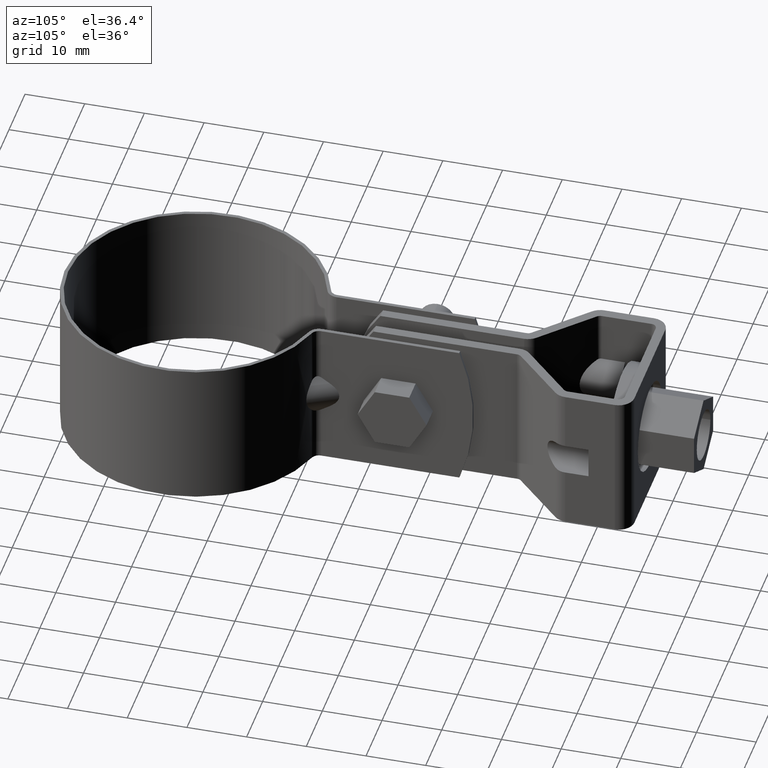
[diagram: clean part render]
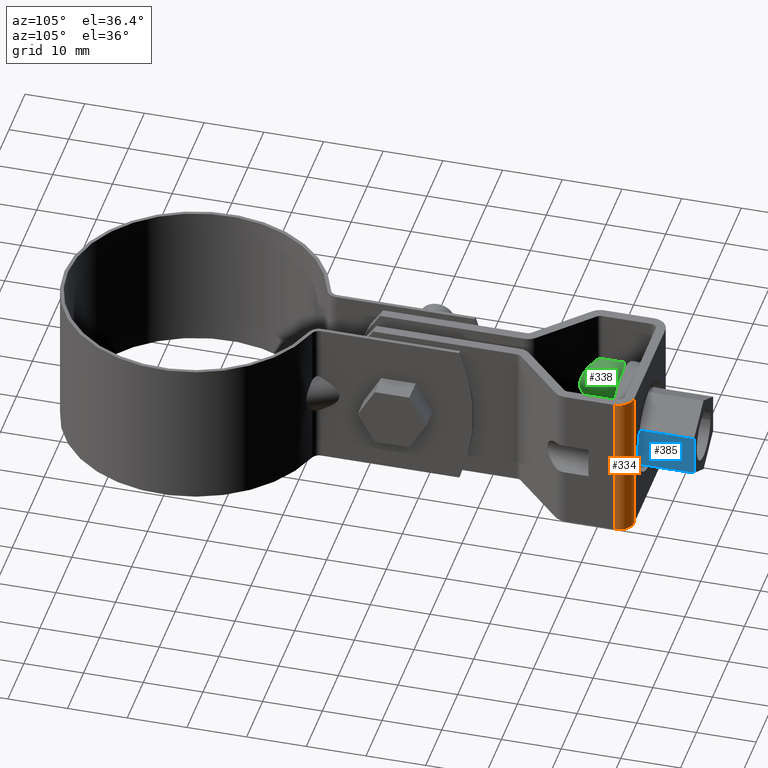
[diagram: same view with three faces highlighted in distinct colors, each labeled with its STEP entity id]
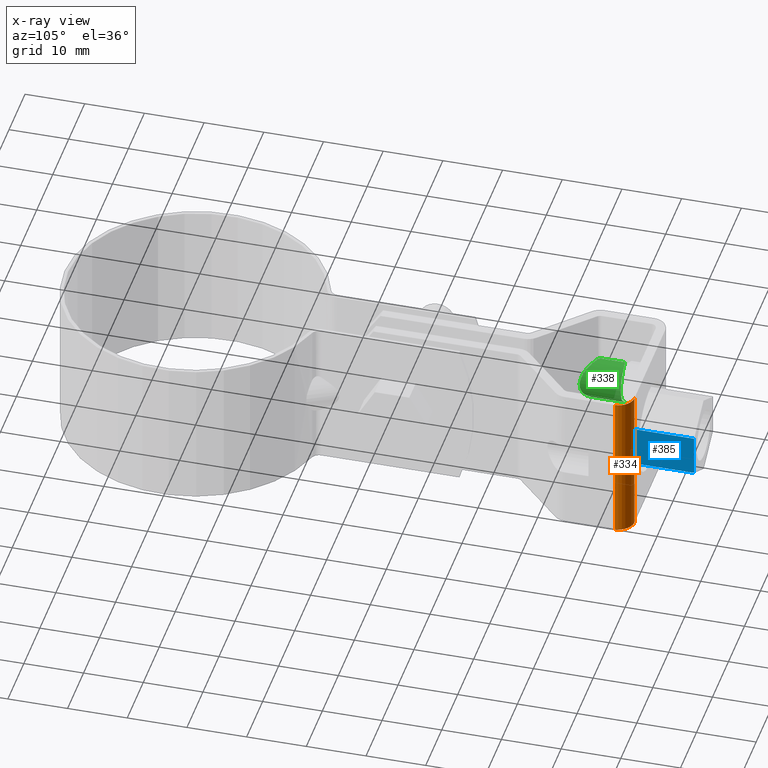
[diagram: x-ray of the same camera — body ghosted, the three highlighted faces saturated]
A machine part, auxiliary view with three faces highlighted in distinct colors.
The next image is the same camera in x-ray (body ghosted, the three faces saturated) — at least one of them is partly hidden behind the body in this view.
Their STEP definitions:

[orange] entity #334 — the highlighted cylindrical surface (edge-blend (fillet) strip) has radius 2.6 mm, axis along (-0, 0, -1).
#334 = ADVANCED_FACE( '', ( #538 ), #539, .T. );
#538 = FACE_OUTER_BOUND( '', #810, .T. );
#539 = CYLINDRICAL_SURFACE( '', #811, 2.59999999999999 );
#810 = EDGE_LOOP( '', ( #1485, #1486, #1487, #1488 ) );
#811 = AXIS2_PLACEMENT_3D( '', #1489, #1490, #1491 );
#1485 = ORIENTED_EDGE( '', *, *, #2123, .F. );
#1486 = ORIENTED_EDGE( '', *, *, #2124, .F. );
#1487 = ORIENTED_EDGE( '', *, *, #2116, .T. );
#1488 = ORIENTED_EDGE( '', *, *, #2125, .T. );
#1489 = CARTESIAN_POINT( '', ( 9.65000000345816, 73.5203729309172, -12.4999985991045 ) );
#1490 = DIRECTION( '', ( -1.87698704392248E-011, 9.98350074832307E-009, -1.00000000000000 ) );
#1491 = DIRECTION( '', ( 1.39877502405819E-011, 1.00000000000000, 9.98350074832280E-009 ) );
#2116 = EDGE_CURVE( '', #2564, #2562, #2565, .T. );
#2123 = EDGE_CURVE( '', #2577, #2578, #2579, .T. );
#2124 = EDGE_CURVE( '', #2564, #2577, #2580, .T. );
#2125 = EDGE_CURVE( '', #2562, #2578, #2581, .T. );
#2562 = VERTEX_POINT( '', #3313 );
#2564 = VERTEX_POINT( '', #3316 );
#2565 = CIRCLE( '', #3317, 2.59999999999999 );
#2577 = VERTEX_POINT( '', #3333 );
#2578 = VERTEX_POINT( '', #3334 );
#2579 = CIRCLE( '', #3335, 2.59999999999999 );
#2580 = LINE( '', #3336, #3337 );
#2581 = LINE( '', #3338, #3339 );
#3313 = CARTESIAN_POINT( '', ( 9.65000000349452, 76.1203729309172, -12.4999985731474 ) );
#3316 = CARTESIAN_POINT( '', ( 12.2500000034581, 73.5203729308808, -12.4999985991533 ) );
#3317 = AXIS2_PLACEMENT_3D( '', #3987, #3988, #3989 );
#3333 = CARTESIAN_POINT( '', ( 12.2500000039274, 73.5203726812933, 12.5000014008467 ) );
#3334 = CARTESIAN_POINT( '', ( 9.65000000396377, 76.1203726813297, 12.5000014268526 ) );
#3335 = AXIS2_PLACEMENT_3D( '', #4000, #4001, #4002 );
#3336 = CARTESIAN_POINT( '', ( 12.2500000034581, 73.5203729308808, -12.4999985991533 ) );
#3337 = VECTOR( '', #4003, 1000.00000000000 );
#3338 = CARTESIAN_POINT( '', ( 9.65000000349452, 76.1203729309172, -12.4999985731474 ) );
#3339 = VECTOR( '', #4004, 1000.00000000000 );
#3987 = CARTESIAN_POINT( '', ( 9.65000000345816, 73.5203729309172, -12.4999985991045 ) );
#3988 = DIRECTION( '', ( 1.87698704392248E-011, -9.98350074832307E-009, 1.00000000000000 ) );
#3989 = DIRECTION( '', ( 1.00000000000000, -1.39877500531929E-011, -1.87698705788715E-011 ) );
#4000 = CARTESIAN_POINT( '', ( 9.65000000392740, 73.5203726813297, 12.5000014008955 ) );
#4001 = DIRECTION( '', ( 1.87698704392248E-011, -9.98350074832307E-009, 1.00000000000000 ) );
#4002 = DIRECTION( '', ( 1.00000000000000, -1.39877500531929E-011, -1.87698705788715E-011 ) );
#4003 = DIRECTION( '', ( 1.87698704392248E-011, -9.98350074832307E-009, 1.00000000000000 ) );
#4004 = DIRECTION( '', ( 1.87698704392248E-011, -9.98350074832307E-009, 1.00000000000000 ) );

[blue] entity #385 — the highlighted planar face has unit normal (-1, 0, 0).
#385 = ADVANCED_FACE( '', ( #653 ), #654, .F. );
#653 = FACE_OUTER_BOUND( '', #925, .T. );
#654 = PLANE( '', #926 );
#925 = EDGE_LOOP( '', ( #1903, #1904, #1905, #1906 ) );
#926 = AXIS2_PLACEMENT_3D( '', #1907, #1908, #1909 );
#1903 = ORIENTED_EDGE( '', *, *, #2236, .T. );
#1904 = ORIENTED_EDGE( '', *, *, #2246, .F. );
#1905 = ORIENTED_EDGE( '', *, *, #2247, .F. );
#1906 = ORIENTED_EDGE( '', *, *, #2241, .T. );
#1907 = CARTESIAN_POINT( '', ( 5.95000000391951, 85.1203727718795, 3.43523561845187 ) );
#1908 = DIRECTION( '', ( -1.00000000000000, 1.39877500531912E-011, 1.87700428314917E-011 ) );
#1909 = DIRECTION( '', ( 1.87700426918449E-011, -9.98350074832307E-009, 1.00000000000000 ) );
#2236 = EDGE_CURVE( '', #2759, #2757, #2760, .T. );
#2241 = EDGE_CURVE( '', #2767, #2759, #2768, .T. );
#2246 = EDGE_CURVE( '', #2776, #2757, #2777, .T. );
#2247 = EDGE_CURVE( '', #2767, #2776, #2778, .T. );
#2757 = VERTEX_POINT( '', #3634 );
#2759 = VERTEX_POINT( '', #3637 );
#2760 = LINE( '', #3638, #3639 );
#2767 = VERTEX_POINT( '', #3650 );
#2768 = LINE( '', #3651, #3652 );
#2776 = VERTEX_POINT( '', #3661 );
#2777 = LINE( '', #3662, #3663 );
#2778 = LINE( '', #3664, #3665 );
#3634 = CARTESIAN_POINT( '', ( 5.95000000364229, 74.5203728404709, -3.43523269072979 ) );
#3637 = CARTESIAN_POINT( '', ( 5.95000000377124, 74.5203727718796, 3.43523551262676 ) );
#3638 = CARTESIAN_POINT( '', ( 5.95000000377124, 74.5203727718796, 3.43523551262676 ) );
#3639 = VECTOR( '', #4175, 1000.00000000000 );
#3650 = CARTESIAN_POINT( '', ( 5.95000000391951, 85.1203727718795, 3.43523561845187 ) );
#3651 = CARTESIAN_POINT( '', ( 5.95000000391951, 85.1203727718795, 3.43523561845187 ) );
#3652 = VECTOR( '', #4180, 1000.00000000000 );
#3661 = CARTESIAN_POINT( '', ( 5.95000000379055, 85.1203728404709, -3.43523258490468 ) );
#3662 = CARTESIAN_POINT( '', ( 5.95000000379055, 85.1203728404709, -3.43523258490468 ) );
#3663 = VECTOR( '', #4191, 1000.00000000000 );
#3664 = CARTESIAN_POINT( '', ( 5.95000000391951, 85.1203727718795, 3.43523561845187 ) );
#3665 = VECTOR( '', #4192, 1000.00000000000 );
#4175 = DIRECTION( '', ( -1.87699871806937E-011, 9.98350074832307E-009, -1.00000000000000 ) );
#4180 = DIRECTION( '', ( -1.39877502405819E-011, -1.00000000000000, -9.98350074832280E-009 ) );
#4191 = DIRECTION( '', ( -1.39877502405819E-011, -1.00000000000000, -9.98350074832280E-009 ) );
#4192 = DIRECTION( '', ( -1.87699871806937E-011, 9.98350074832307E-009, -1.00000000000000 ) );

[green] entity #338 — the highlighted cylindrical surface (edge-blend (fillet) strip) has radius 4.25 mm, axis along (-0, -1, -0).
#338 = ADVANCED_FACE( '', ( #547 ), #548, .T. );
#547 = FACE_OUTER_BOUND( '', #819, .T. );
#548 = CYLINDRICAL_SURFACE( '', #820, 4.24999999999996 );
#819 = EDGE_LOOP( '', ( #1518, #1519, #1520, #1521, #1522, #1523 ) );
#820 = AXIS2_PLACEMENT_3D( '', #1524, #1525, #1526 );
#1518 = ORIENTED_EDGE( '', *, *, #2140, .F. );
#1519 = ORIENTED_EDGE( '', *, *, #2141, .F. );
#1520 = ORIENTED_EDGE( '', *, *, #2142, .F. );
#1521 = ORIENTED_EDGE( '', *, *, #2143, .F. );
#1522 = ORIENTED_EDGE( '', *, *, #2144, .T. );
#1523 = ORIENTED_EDGE( '', *, *, #2145, .F. );
#1524 = CARTESIAN_POINT( '', ( -12.2499999965086, 59.1203728064298, 1.25754415214452E-006 ) );
#1525 = DIRECTION( '', ( -1.39876277799465E-011, -1.00000000000000, -9.98350074832281E-009 ) );
#1526 = DIRECTION( '', ( -1.87488145554088E-011, 9.98350074832307E-009, -1.00000000000000 ) );
#2140 = EDGE_CURVE( '', #2608, #2609, #2610, .T. );
#2141 = EDGE_CURVE( '', #2611, #2608, #2612, .T. );
#2142 = EDGE_CURVE( '', #2613, #2611, #2614, .T. );
#2143 = EDGE_CURVE( '', #2615, #2613, #2616, .F. );
#2144 = EDGE_CURVE( '', #2615, #2617, #2618, .T. );
#2145 = EDGE_CURVE( '', #2609, #2617, #2619, .T. );
#2608 = VERTEX_POINT( '', #3387 );
#2609 = VERTEX_POINT( '', #3388 );
#2610 = B_SPLINE_CURVE_WITH_KNOTS( '', 3, ( #3389, #3390, #3391, #3392, #3393, #3394 ), .UNSPECIFIED., .F., .F., ( 4, 2, 4 ), ( 1.93947980722448E-018, 0.000404290461596237, 0.000808580923192472 ), .UNSPECIFIED. );
#2611 = VERTEX_POINT( '', #3395 );
#2612 = ELLIPSE( '', #3396, 5.93756228945901, 4.24999999999996 );
#2613 = VERTEX_POINT( '', #3397 );
#2614 = B_SPLINE_CURVE_WITH_KNOTS( '', 3, ( #3398, #3399, #3400, #3401, #3402, #3403 ), .UNSPECIFIED., .F., .F., ( 4, 2, 4 ), ( 0.000000000000000, 0.000404110423349703, 0.000808220846699406 ), .UNSPECIFIED. );
#2615 = VERTEX_POINT( '', #3404 );
#2616 = LINE( '', #3405, #3406 );
#2617 = VERTEX_POINT( '', #3407 );
#2618 = CIRCLE( '', #3408, 4.24999999999996 );
#2619 = LINE( '', #3409, #3410 );
#3387 = CARTESIAN_POINT( '', ( -10.3483238318925, 64.5003965728297, 3.80080751063192 ) );
#3388 = CARTESIAN_POINT( '', ( -10.6499999963495, 65.2161785359895, 3.93732274289360 ) );
#3389 = CARTESIAN_POINT( '', ( -10.3483238318925, 64.5003965728297, 3.80080751063192 ) );
#3390 = CARTESIAN_POINT( '', ( -10.4403808966775, 64.5902083387420, 3.84686687806774 ) );
#3391 = CARTESIAN_POINT( '', ( -10.5165797495109, 64.6996536767495, 3.88085469232131 ) );
#3392 = CARTESIAN_POINT( '', ( -10.6216014646824, 64.9446108905520, 3.92607911982672 ) );
#3393 = CARTESIAN_POINT( '', ( -10.6499999963514, 65.0794538625968, 3.93732274152861 ) );
#3394 = CARTESIAN_POINT( '', ( -10.6499999963495, 65.2161785359895, 3.93732274289360 ) );
#3395 = CARTESIAN_POINT( '', ( -10.3483238320352, 64.5003966487204, -3.80080488819204 ) );
#3396 = AXIS2_PLACEMENT_3D( '', #4031, #4032, #4033 );
#3397 = CARTESIAN_POINT( '', ( -10.6499999964973, 65.2161786146060, -3.93732010615039 ) );
#3398 = CARTESIAN_POINT( '', ( -10.6499999964973, 65.2161786146060, -3.93732010615039 ) );
#3399 = CARTESIAN_POINT( '', ( -10.6499999964992, 65.0795028118196, -3.93732010751489 ) );
#3400 = CARTESIAN_POINT( '', ( -10.6217333049691, 64.9451127868305, -3.92612965840708 ) );
#3401 = CARTESIAN_POINT( '', ( -10.5168996467059, 64.7002064227443, -3.88099340744983 ) );
#3402 = CARTESIAN_POINT( '', ( -10.4403731816362, 64.5902008885422, -3.84686039365421 ) );
#3403 = CARTESIAN_POINT( '', ( -10.3483238320352, 64.5003966487204, -3.80080488819204 ) );
#3404 = CARTESIAN_POINT( '', ( -10.6499999964427, 69.1203728457157, -3.93732006717284 ) );
#3405 = CARTESIAN_POINT( '', ( -10.6499999966525, 54.1203728457159, -3.93732021692537 ) );
#3406 = VECTOR( '', #4034, 1000.00000000000 );
#3407 = CARTESIAN_POINT( '', ( -10.6499999962949, 69.1203727670992, 3.93732278187112 ) );
#3408 = AXIS2_PLACEMENT_3D( '', #4035, #4036, #4037 );
#3409 = CARTESIAN_POINT( '', ( -10.6499999965047, 54.1203727670994, 3.93732263211861 ) );
#3410 = VECTOR( '', #4038, 1000.00000000000 );
#4031 = CARTESIAN_POINT( '', ( -12.2499999964074, 66.3556903440023, 1.32977795441747E-006 ) );
#4032 = DIRECTION( '', ( -0.698323835540511, -0.715781964508739, -7.13290233039143E-009 ) );
#4033 = DIRECTION( '', ( -0.715781964508739, 0.698323835540511, 6.98515166942709E-009 ) );
#4034 = DIRECTION( '', ( 1.39876277799465E-011, 1.00000000000000, 9.98350074832280E-009 ) );
#4035 = CARTESIAN_POINT( '', ( -12.2499999963687, 69.1203728064299, 1.35737916739931E-006 ) );
#4036 = DIRECTION( '', ( -1.39876277799465E-011, -1.00000000000000, -9.98350074832281E-009 ) );
#4037 = DIRECTION( '', ( -1.87700394073501E-011, 9.98350074832307E-009, -1.00000000000000 ) );
#4038 = DIRECTION( '', ( 1.39876277799465E-011, 1.00000000000000, 9.98350074832280E-009 ) );